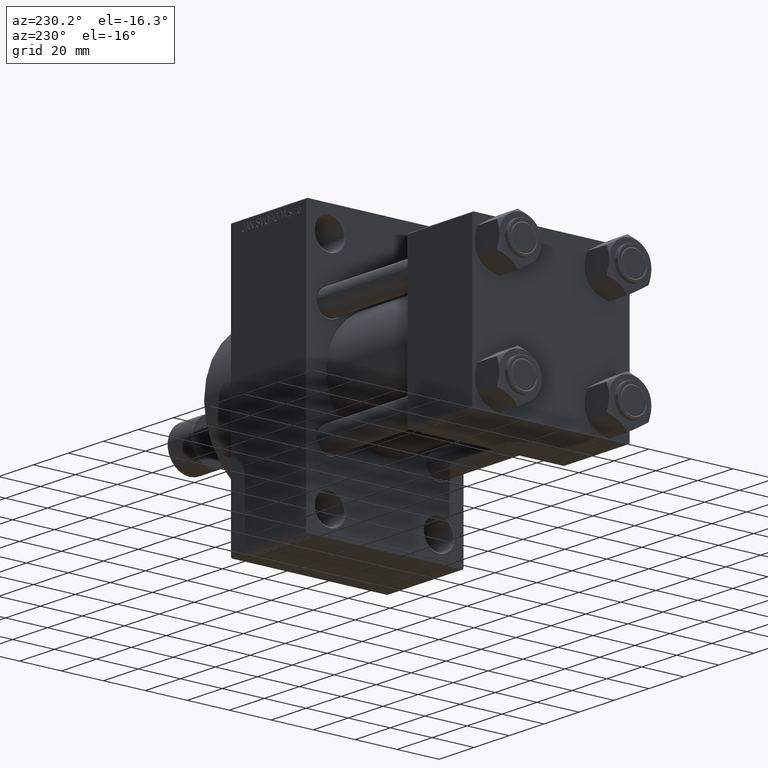
[diagram: clean part render]
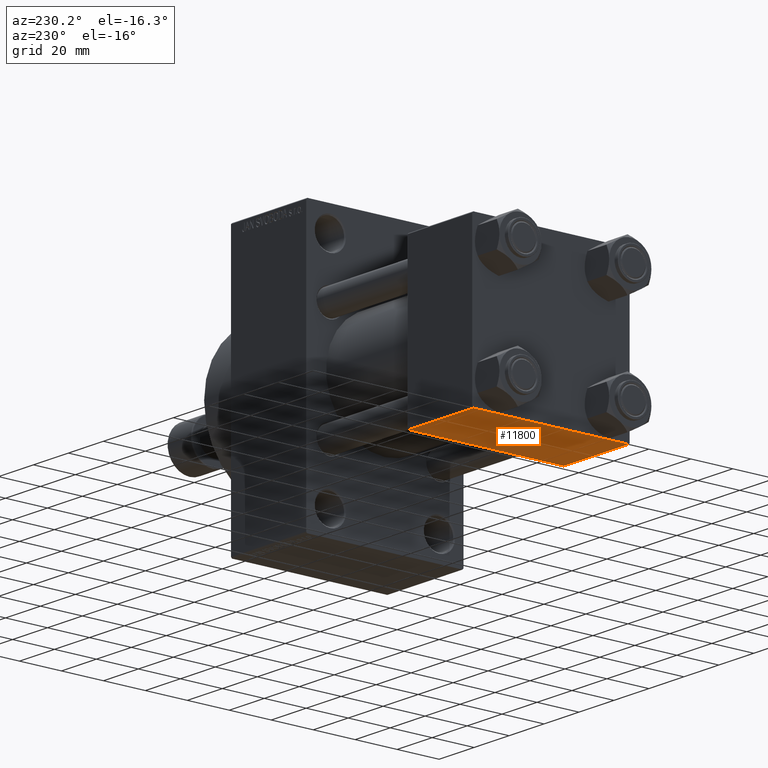
[diagram: same view with one face highlighted and labeled with its STEP entity id]
A machine part, auxiliary view. The second image highlights one B-rep face of the part: STEP entity #11800.
In plain terms, the highlighted planar face has unit normal (0, 0, -1).
Its self-contained STEP definition (entity closure, byte-faithful):
#1180 = CARTESIAN_POINT ( 'NONE',  ( 0.000000000000000000, 37.49999999999999289, -37.50000000000000000 ) ) ;
#2700 = DIRECTION ( 'NONE',  ( -1.000000000000000000, 0.000000000000000000, 0.000000000000000000 ) ) ;
#3142 = DIRECTION ( 'NONE',  ( 0.000000000000000000, 9.251858538542972814E-17, -1.000000000000000000 ) ) ;
#3179 = LINE ( 'NONE', #28705, #14035 ) ;
#3690 = VERTEX_POINT ( 'NONE', #19574 ) ;
#6612 = DIRECTION ( 'NONE',  ( 0.000000000000000000, -1.000000000000000000, -9.251858538542972814E-17 ) ) ;
#7090 = CARTESIAN_POINT ( 'NONE',  ( 37.00000000000000000, 37.49999999999999289, -37.50000000000000000 ) ) ;
#10229 = VECTOR ( 'NONE', #40405, 1000.000000000000000 ) ;
#10606 = FACE_OUTER_BOUND ( 'NONE', #44504, .T. ) ;
#10729 = CARTESIAN_POINT ( 'NONE',  ( 37.00000000000000000, -37.00000000000002132, -37.50000000000000711 ) ) ;
#11332 = PLANE ( 'NONE',  #21626 ) ;
#11800 = ADVANCED_FACE ( 'NONE', ( #10606 ), #11332, .T. ) ;
#12493 = LINE ( 'NONE', #1180, #25883 ) ;
#13996 = CARTESIAN_POINT ( 'NONE',  ( 0.000000000000000000, -37.00000000000002132, -37.50000000000000711 ) ) ;
#14035 = VECTOR ( 'NONE', #2700, 1000.000000000000000 ) ;
#15859 = DIRECTION ( 'NONE',  ( 0.000000000000000000, -1.000000000000000000, -9.251858538542972814E-17 ) ) ;
#15916 = EDGE_CURVE ( 'NONE', #36443, #32859, #3179, .T. ) ;
#18982 = ORIENTED_EDGE ( 'NONE', *, *, #34837, .T. ) ;
#19574 = CARTESIAN_POINT ( 'NONE',  ( 37.00000000000000000, 36.99999999999997868, -37.50000000000000000 ) ) ;
#21204 = EDGE_CURVE ( 'NONE', #38254, #3690, #47616, .T. ) ;
#21626 = AXIS2_PLACEMENT_3D ( 'NONE', #36115, #3142, #39739 ) ;
#23748 = CARTESIAN_POINT ( 'NONE',  ( 0.000000000000000000, 36.99999999999997868, -37.50000000000000000 ) ) ;
#25014 = CARTESIAN_POINT ( 'NONE',  ( 37.00000000000000000, 36.99999999999997868, -37.50000000000000000 ) ) ;
#25883 = VECTOR ( 'NONE', #15859, 1000.000000000000000 ) ;
#26856 = ORIENTED_EDGE ( 'NONE', *, *, #21204, .T. ) ;
#27983 = EDGE_CURVE ( 'NONE', #38254, #32859, #12493, .T. ) ;
#28705 = CARTESIAN_POINT ( 'NONE',  ( 0.000000000000000000, -37.00000000000002132, -37.50000000000000711 ) ) ;
#28811 = VECTOR ( 'NONE', #6612, 1000.000000000000000 ) ;
#32859 = VERTEX_POINT ( 'NONE', #13996 ) ;
#34837 = EDGE_CURVE ( 'NONE', #3690, #36443, #39593, .T. ) ;
#36115 = CARTESIAN_POINT ( 'NONE',  ( 37.00000000000000000, 37.49999999999999289, -37.50000000000000000 ) ) ;
#36443 = VERTEX_POINT ( 'NONE', #10729 ) ;
#37514 = ORIENTED_EDGE ( 'NONE', *, *, #15916, .T. ) ;
#38254 = VERTEX_POINT ( 'NONE', #23748 ) ;
#39593 = LINE ( 'NONE', #7090, #28811 ) ;
#39739 = DIRECTION ( 'NONE',  ( 0.000000000000000000, 1.000000000000000000, 9.251858538542972814E-17 ) ) ;
#40405 = DIRECTION ( 'NONE',  ( 1.000000000000000000, 0.000000000000000000, 0.000000000000000000 ) ) ;
#44504 = EDGE_LOOP ( 'NONE', ( #44956, #26856, #18982, #37514 ) ) ;
#44956 = ORIENTED_EDGE ( 'NONE', *, *, #27983, .F. ) ;
#47616 = LINE ( 'NONE', #25014, #10229 ) ;